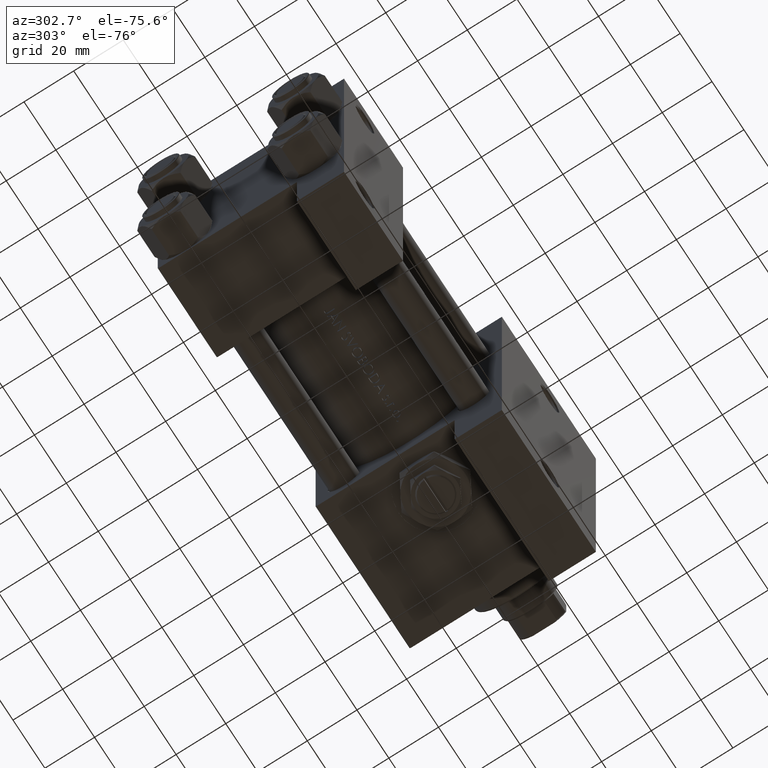
[diagram: clean part render]
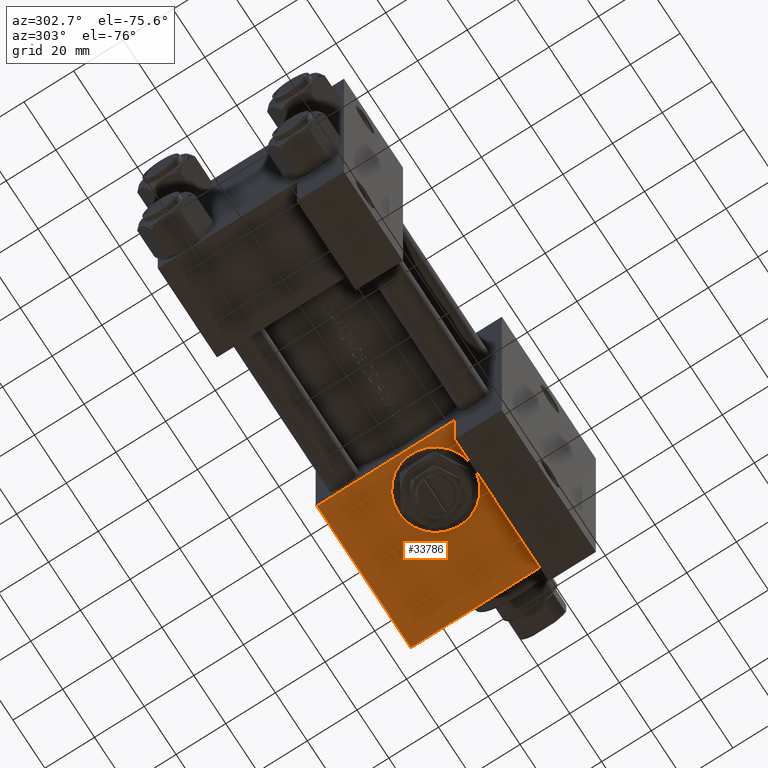
[diagram: same view with one face highlighted and labeled with its STEP entity id]
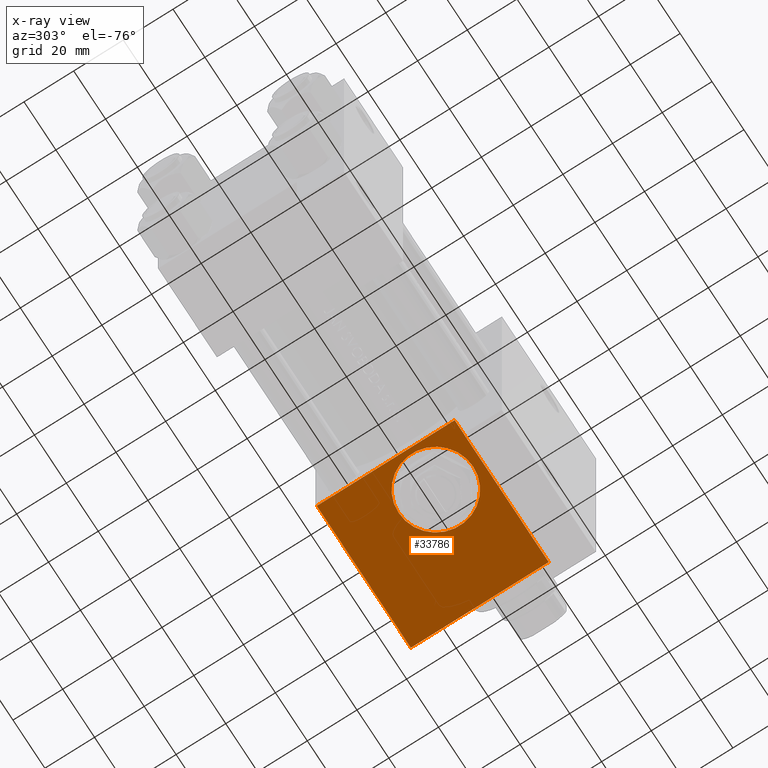
[diagram: x-ray of the same camera — body ghosted, the highlighted face saturated]
A machine part, auxiliary view. The second image highlights one B-rep face of the part: STEP entity #33786.
The next image is the same camera in x-ray: the body ghosted, the highlighted face saturated — about 0% of this face is hidden behind the body in this view.
In plain terms, the highlighted planar face has unit normal (0, 0, -1).
Its self-contained STEP definition (entity closure, byte-faithful):
#1579 = DIRECTION ( 'NONE',  ( 0.000000000000000000, 0.000000000000000000, -1.000000000000000000 ) ) ;
#1673 = CIRCLE ( 'NONE', #22374, 15.00000000000001243 ) ;
#2694 = VERTEX_POINT ( 'NONE', #45363 ) ;
#2732 = CARTESIAN_POINT ( 'NONE',  ( 116.0000000000000000, 37.50000000000000000, 0.000000000000000000 ) ) ;
#2995 = VERTEX_POINT ( 'NONE', #14917 ) ;
#3572 = CARTESIAN_POINT ( 'NONE',  ( 99.00000000000000000, 37.50000000000000000, -18.50000000000000355 ) ) ;
#4206 = DIRECTION ( 'NONE',  ( 0.000000000000000000, 0.000000000000000000, 1.000000000000000000 ) ) ;
#5254 = CARTESIAN_POINT ( 'NONE',  ( 158.0000000000000000, 37.50000000000000000, 37.49999999999999289 ) ) ;
#5914 = ORIENTED_EDGE ( 'NONE', *, *, #23365, .T. ) ;
#7265 = ORIENTED_EDGE ( 'NONE', *, *, #33968, .F. ) ;
#8012 = VECTOR ( 'NONE', #31202, 1000.000000000000000 ) ;
#8285 = CARTESIAN_POINT ( 'NONE',  ( 99.00000000000000000, 37.50000000000000000, -18.50000000000000000 ) ) ;
#8470 = EDGE_CURVE ( 'NONE', #44736, #2694, #43902, .T. ) ;
#9199 = EDGE_CURVE ( 'NONE', #2694, #18098, #12020, .T. ) ;
#9777 = EDGE_LOOP ( 'NONE', ( #36902, #5914, #39802, #37831 ) ) ;
#12020 = LINE ( 'NONE', #8285, #48282 ) ;
#12232 = ORIENTED_EDGE ( 'NONE', *, *, #47232, .F. ) ;
#14917 = CARTESIAN_POINT ( 'NONE',  ( 99.00000000000000000, 37.50000000000000000, 36.99999999999999289 ) ) ;
#15998 = CARTESIAN_POINT ( 'NONE',  ( 116.0000000000000000, 37.50000000000000000, -15.00000000000001243 ) ) ;
#16315 = CARTESIAN_POINT ( 'NONE',  ( 158.0000000000000000, 37.50000000000000000, 36.99999999999999289 ) ) ;
#17131 = VERTEX_POINT ( 'NONE', #15998 ) ;
#17214 = VECTOR ( 'NONE', #40166, 1000.000000000000000 ) ;
#18098 = VERTEX_POINT ( 'NONE', #3572 ) ;
#19112 = EDGE_LOOP ( 'NONE', ( #12232, #7265 ) ) ;
#19239 = LINE ( 'NONE', #31694, #8012 ) ;
#20012 = CARTESIAN_POINT ( 'NONE',  ( 99.00000000000000000, 37.50000000000000000, 37.49999999999999289 ) ) ;
#21449 = CARTESIAN_POINT ( 'NONE',  ( 158.0000000000000000, 37.50000000000000000, 37.49999999999999289 ) ) ;
#22077 = EDGE_CURVE ( 'NONE', #2995, #18098, #35731, .T. ) ;
#22374 = AXIS2_PLACEMENT_3D ( 'NONE', #2732, #25913, #4206 ) ;
#23232 = DIRECTION ( 'NONE',  ( -1.000000000000000000, 1.176083712526649442E-16, -0.000000000000000000 ) ) ;
#23365 = EDGE_CURVE ( 'NONE', #2995, #44736, #19239, .T. ) ;
#24679 = PLANE ( 'NONE',  #24758 ) ;
#24758 = AXIS2_PLACEMENT_3D ( 'NONE', #5254, #36402, #39895 ) ;
#24810 = CARTESIAN_POINT ( 'NONE',  ( 116.0000000000000000, 37.50000000000000000, 0.000000000000000000 ) ) ;
#25071 = CIRCLE ( 'NONE', #40978, 15.00000000000001243 ) ;
#25913 = DIRECTION ( 'NONE',  ( 0.000000000000000000, 1.000000000000000000, 0.000000000000000000 ) ) ;
#28054 = DIRECTION ( 'NONE',  ( 0.000000000000000000, 1.000000000000000000, 0.000000000000000000 ) ) ;
#31202 = DIRECTION ( 'NONE',  ( 1.000000000000000000, 0.000000000000000000, 0.000000000000000000 ) ) ;
#31694 = CARTESIAN_POINT ( 'NONE',  ( 158.0000000000000000, 37.50000000000000000, 36.99999999999999289 ) ) ;
#33786 = ADVANCED_FACE ( 'NONE', ( #39653, #43131 ), #24679, .T. ) ;
#33968 = EDGE_CURVE ( 'NONE', #17131, #38791, #1673, .T. ) ;
#35731 = LINE ( 'NONE', #20012, #39001 ) ;
#36402 = DIRECTION ( 'NONE',  ( -0.000000000000000000, 1.000000000000000000, 0.000000000000000000 ) ) ;
#36902 = ORIENTED_EDGE ( 'NONE', *, *, #22077, .F. ) ;
#37831 = ORIENTED_EDGE ( 'NONE', *, *, #9199, .T. ) ;
#38791 = VERTEX_POINT ( 'NONE', #45227 ) ;
#39001 = VECTOR ( 'NONE', #1579, 1000.000000000000000 ) ;
#39653 = FACE_BOUND ( 'NONE', #19112, .T. ) ;
#39802 = ORIENTED_EDGE ( 'NONE', *, *, #8470, .T. ) ;
#39895 = DIRECTION ( 'NONE',  ( 0.000000000000000000, -0.000000000000000000, 1.000000000000000000 ) ) ;
#40166 = DIRECTION ( 'NONE',  ( 0.000000000000000000, 0.000000000000000000, -1.000000000000000000 ) ) ;
#40978 = AXIS2_PLACEMENT_3D ( 'NONE', #24810, #28054, #47250 ) ;
#43131 = FACE_OUTER_BOUND ( 'NONE', #9777, .T. ) ;
#43902 = LINE ( 'NONE', #21449, #17214 ) ;
#44736 = VERTEX_POINT ( 'NONE', #16315 ) ;
#45227 = CARTESIAN_POINT ( 'NONE',  ( 116.0000000000000000, 37.50000000000000000, 15.00000000000001243 ) ) ;
#45363 = CARTESIAN_POINT ( 'NONE',  ( 157.9999999999999716, 37.49999999999999289, -18.50000000000000000 ) ) ;
#47232 = EDGE_CURVE ( 'NONE', #38791, #17131, #25071, .T. ) ;
#47250 = DIRECTION ( 'NONE',  ( 0.000000000000000000, 0.000000000000000000, 1.000000000000000000 ) ) ;
#48282 = VECTOR ( 'NONE', #23232, 1000.000000000000000 ) ;